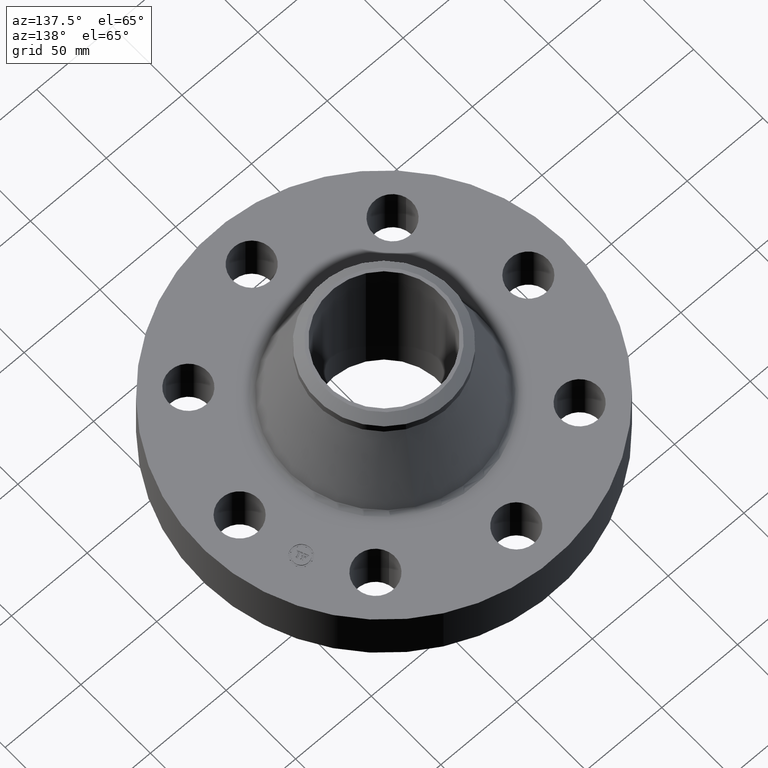
[diagram: clean part render]
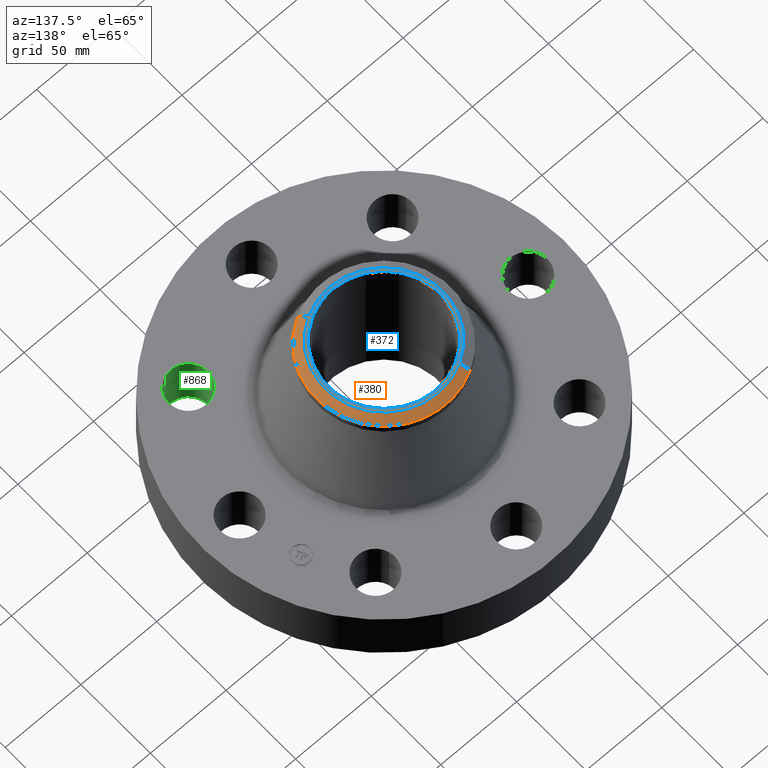
[diagram: same view with three faces highlighted in distinct colors, each labeled with its STEP entity id]
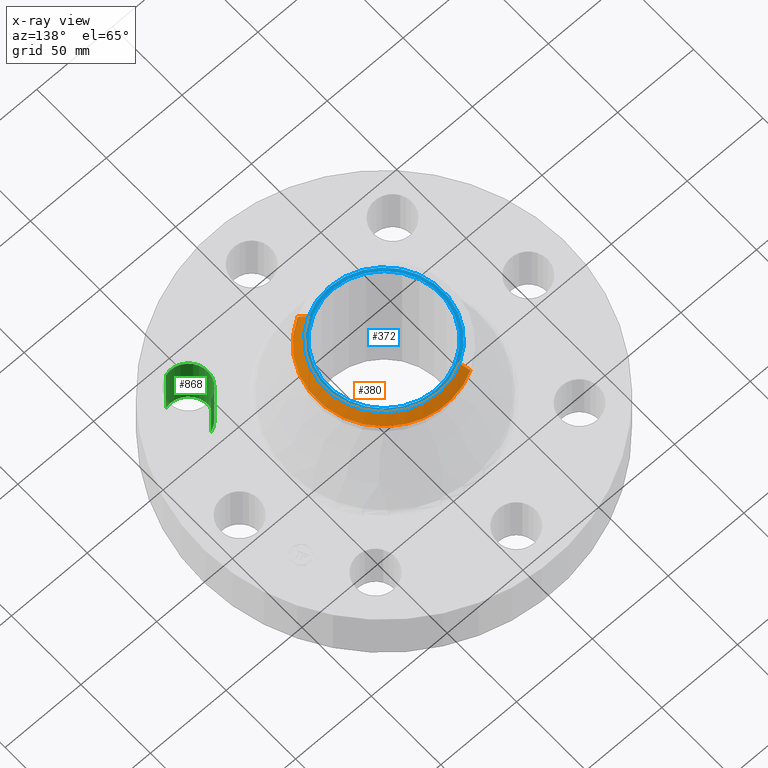
[diagram: x-ray of the same camera — body ghosted, the three highlighted faces saturated]
A machine part, auxiliary view with three faces highlighted in distinct colors.
The next image is the same camera in x-ray (body ghosted, the three faces saturated) — at least one of them is partly hidden behind the body in this view.
Their STEP definitions:

[orange] entity #380 — the highlighted conical surface has half-angle 52.5 deg.
#270=AXIS2_PLACEMENT_3D('Circle Axis2P3D',#268,#269,$) ;
#297=AXIS2_PLACEMENT_3D('Circle Axis2P3D',#295,#296,$) ;
#311=AXIS2_PLACEMENT_3D('Cone Axis2P3D',#308,#309,#310) ;
#347=AXIS2_PLACEMENT_3D('Circle Axis2P3D',#345,#346,$) ;
#265=CARTESIAN_POINT('Vertex',(0.838994692561,1.53576948331,3.83022135149)) ;
#268=CARTESIAN_POINT('Axis2P3D Location',(0.,0.,3.83022135149)) ;
#272=CARTESIAN_POINT('Vertex',(0.838994692561,-1.53576948331,3.83022135149)) ;
#292=CARTESIAN_POINT('Vertex',(-0.838994692561,1.53576948331,3.83022135149)) ;
#295=CARTESIAN_POINT('Axis2P3D Location',(0.,0.,3.83022135149)) ;
#308=CARTESIAN_POINT('Axis2P3D Location',(0.,0.,4.00000000002)) ;
#313=CARTESIAN_POINT('Line Origine',(0.785955882975,-1.43868259359,3.91511067575)) ;
#317=CARTESIAN_POINT('Vertex',(0.732917073389,-1.34159570387,4.00000000002)) ;
#324=CARTESIAN_POINT('Vertex',(-0.732917073389,1.34159570387,4.00000000002)) ;
#327=CARTESIAN_POINT('Line Origine',(-0.785955882975,1.43868259359,3.91511067575)) ;
#345=CARTESIAN_POINT('Axis2P3D Location',(0.,0.,4.00000000002)) ;
#269=DIRECTION('Axis2P3D Direction',(0.,0.,-0.0393700787402)) ;
#296=DIRECTION('Axis2P3D Direction',(0.,0.,-0.0393700787402)) ;
#309=DIRECTION('Axis2P3D Direction',(-0.,-0.,-0.0393700787402)) ;
#310=DIRECTION('Axis2P3D XDirection',(-0.0188750212049,0.0345504945626,0.)) ;
#314=DIRECTION('Vector Direction',(0.014974561121,-0.02741075027,-0.023966985394)) ;
#328=DIRECTION('Vector Direction',(-0.014974561121,0.02741075027,-0.023966985394)) ;
#346=DIRECTION('Axis2P3D Direction',(0.,0.,-0.0393700787402)) ;
#315=VECTOR('Line Direction',#314,0.0393700787402) ;
#329=VECTOR('Line Direction',#328,0.0393700787402) ;
#374=ORIENTED_EDGE('',*,*,#331,.F.) ;
#375=ORIENTED_EDGE('',*,*,#349,.F.) ;
#376=ORIENTED_EDGE('',*,*,#319,.T.) ;
#377=ORIENTED_EDGE('',*,*,#274,.T.) ;
#378=ORIENTED_EDGE('',*,*,#299,.F.) ;
#380=ADVANCED_FACE('PartBody',(#379),#312,.T.) ;
#271=CIRCLE('generated circle',#270,1.75000000001) ;
#298=CIRCLE('generated circle',#297,1.75000000001) ;
#348=CIRCLE('generated circle',#347,1.52874015749) ;
#312=CONICAL_SURFACE('Cone',#311,1.52874015749,0.916297857297) ;
#274=EDGE_CURVE('',#273,#266,#271,.F.) ;
#299=EDGE_CURVE('',#293,#266,#298,.T.) ;
#319=EDGE_CURVE('',#318,#273,#316,.T.) ;
#331=EDGE_CURVE('',#325,#293,#330,.T.) ;
#349=EDGE_CURVE('',#318,#325,#348,.F.) ;
#373=EDGE_LOOP('',(#374,#375,#376,#377,#378)) ;
#379=FACE_OUTER_BOUND('',#373,.T.) ;
#316=LINE('Line',#313,#315) ;
#330=LINE('Line',#327,#329) ;
#266=VERTEX_POINT('',#265) ;
#273=VERTEX_POINT('',#272) ;
#293=VERTEX_POINT('',#292) ;
#318=VERTEX_POINT('',#317) ;
#325=VERTEX_POINT('',#324) ;

[blue] entity #372 — the highlighted planar face has unit normal (0, 0, -1).
#322=AXIS2_PLACEMENT_3D('Circle Axis2P3D',#320,#321,$) ;
#343=AXIS2_PLACEMENT_3D('Plane Axis2P3D',#340,#341,#342) ;
#347=AXIS2_PLACEMENT_3D('Circle Axis2P3D',#345,#346,$) ;
#356=AXIS2_PLACEMENT_3D('Circle Axis2P3D',#354,#355,$) ;
#365=AXIS2_PLACEMENT_3D('Circle Axis2P3D',#363,#364,$) ;
#317=CARTESIAN_POINT('Vertex',(0.732917073389,-1.34159570387,4.00000000002)) ;
#320=CARTESIAN_POINT('Axis2P3D Location',(0.,0.,4.00000000002)) ;
#324=CARTESIAN_POINT('Vertex',(-0.732917073389,1.34159570387,4.00000000002)) ;
#340=CARTESIAN_POINT('Axis2P3D Location',(0.,1.75000000001,4.00000000002)) ;
#345=CARTESIAN_POINT('Axis2P3D Location',(0.,0.,4.00000000002)) ;
#354=CARTESIAN_POINT('Axis2P3D Location',(0.,0.,4.00000000002)) ;
#358=CARTESIAN_POINT('Vertex',(-0.695167030979,-1.27249471475,4.00000000002)) ;
#360=CARTESIAN_POINT('Vertex',(0.695167030979,1.27249471475,4.00000000002)) ;
#363=CARTESIAN_POINT('Axis2P3D Location',(0.,0.,4.00000000002)) ;
#321=DIRECTION('Axis2P3D Direction',(0.,0.,-0.0393700787402)) ;
#341=DIRECTION('Axis2P3D Direction',(0.,0.,-0.0393700787402)) ;
#342=DIRECTION('Axis2P3D XDirection',(0.0393700787402,0.,0.)) ;
#346=DIRECTION('Axis2P3D Direction',(0.,0.,-0.0393700787402)) ;
#355=DIRECTION('Axis2P3D Direction',(0.,0.,-0.0393700787402)) ;
#364=DIRECTION('Axis2P3D Direction',(0.,0.,-0.0393700787402)) ;
#351=ORIENTED_EDGE('',*,*,#349,.T.) ;
#352=ORIENTED_EDGE('',*,*,#326,.T.) ;
#369=ORIENTED_EDGE('',*,*,#362,.T.) ;
#370=ORIENTED_EDGE('',*,*,#367,.T.) ;
#371=FACE_BOUND('',#368,.T.) ;
#372=ADVANCED_FACE('PartBody',(#353,#371),#344,.F.) ;
#323=CIRCLE('generated circle',#322,1.52874015749) ;
#348=CIRCLE('generated circle',#347,1.52874015749) ;
#357=CIRCLE('generated circle',#356,1.45000000001) ;
#366=CIRCLE('generated circle',#365,1.45000000001) ;
#326=EDGE_CURVE('',#325,#318,#323,.F.) ;
#349=EDGE_CURVE('',#318,#325,#348,.F.) ;
#362=EDGE_CURVE('',#359,#361,#357,.T.) ;
#367=EDGE_CURVE('',#361,#359,#366,.T.) ;
#350=EDGE_LOOP('',(#351,#352)) ;
#368=EDGE_LOOP('',(#369,#370)) ;
#353=FACE_OUTER_BOUND('',#350,.T.) ;
#344=PLANE('',#343) ;
#318=VERTEX_POINT('',#317) ;
#325=VERTEX_POINT('',#324) ;
#359=VERTEX_POINT('',#358) ;
#361=VERTEX_POINT('',#360) ;

[green] entity #868 — the highlighted cylindrical surface (edge-blend (fillet) strip) has radius 12.7 mm, axis along (0, -0, -1).
#452=AXIS2_PLACEMENT_3D('Circle Axis2P3D',#450,#451,$) ;
#829=AXIS2_PLACEMENT_3D('Cylinder Axis2P3D',#826,#827,#828) ;
#859=AXIS2_PLACEMENT_3D('Circle Axis2P3D',#857,#858,$) ;
#445=CARTESIAN_POINT('Vertex',(2.51088066389,-2.17187561447,0.)) ;
#447=CARTESIAN_POINT('Vertex',(2.79242019503,-3.13142524445,0.)) ;
#450=CARTESIAN_POINT('Axis2P3D Location',(2.65165042946,-2.65165042946,0.)) ;
#826=CARTESIAN_POINT('Axis2P3D Location',(2.65165042946,-2.65165042946,1.49606299213)) ;
#831=CARTESIAN_POINT('Line Origine',(2.51088066389,-2.17187561447,0.750000000003)) ;
#835=CARTESIAN_POINT('Vertex',(2.51088066389,-2.17187561447,1.50000000001)) ;
#838=CARTESIAN_POINT('Line Origine',(2.79242019503,-3.13142524445,0.750000000003)) ;
#842=CARTESIAN_POINT('Vertex',(2.79242019503,-3.13142524445,1.50000000001)) ;
#857=CARTESIAN_POINT('Axis2P3D Location',(2.65165042946,-2.65165042946,1.50000000001)) ;
#451=DIRECTION('Axis2P3D Direction',(0.,0.,-0.0393700787402)) ;
#827=DIRECTION('Axis2P3D Direction',(0.,-0.,-0.0393700787402)) ;
#828=DIRECTION('Axis2P3D XDirection',(0.0110842335096,-0.0377775444876,0.)) ;
#832=DIRECTION('Vector Direction',(0.,0.,-0.0393700787402)) ;
#839=DIRECTION('Vector Direction',(0.,0.,-0.0393700787402)) ;
#858=DIRECTION('Axis2P3D Direction',(0.,-0.,-0.0393700787402)) ;
#833=VECTOR('Line Direction',#832,0.0393700787402) ;
#840=VECTOR('Line Direction',#839,0.0393700787402) ;
#863=ORIENTED_EDGE('',*,*,#844,.F.) ;
#864=ORIENTED_EDGE('',*,*,#454,.T.) ;
#865=ORIENTED_EDGE('',*,*,#837,.T.) ;
#866=ORIENTED_EDGE('',*,*,#861,.F.) ;
#868=ADVANCED_FACE('PartBody',(#867),#830,.F.) ;
#453=CIRCLE('generated circle',#452,0.500000000002) ;
#860=CIRCLE('generated circle',#859,0.500000000002) ;
#830=CYLINDRICAL_SURFACE('generated cylinder',#829,0.500000000002) ;
#454=EDGE_CURVE('',#448,#446,#453,.T.) ;
#837=EDGE_CURVE('',#446,#836,#834,.F.) ;
#844=EDGE_CURVE('',#448,#843,#841,.F.) ;
#861=EDGE_CURVE('',#843,#836,#860,.T.) ;
#862=EDGE_LOOP('',(#863,#864,#865,#866)) ;
#867=FACE_OUTER_BOUND('',#862,.T.) ;
#834=LINE('Line',#831,#833) ;
#841=LINE('Line',#838,#840) ;
#446=VERTEX_POINT('',#445) ;
#448=VERTEX_POINT('',#447) ;
#836=VERTEX_POINT('',#835) ;
#843=VERTEX_POINT('',#842) ;